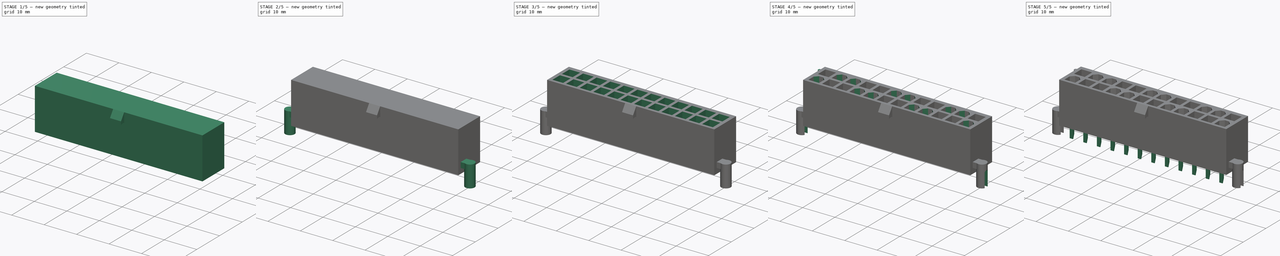
[diagram: build sequence overview — one tinted view per stage of 5, left to right]
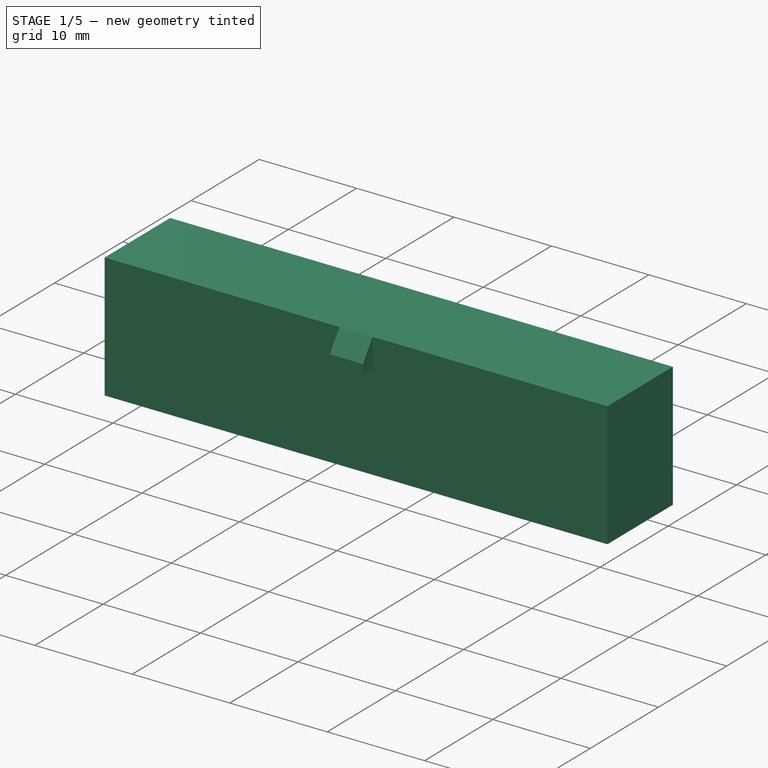
[diagram: stage 1 of 5 — iso view after this stage's code; geometry added in this stage tinted green]
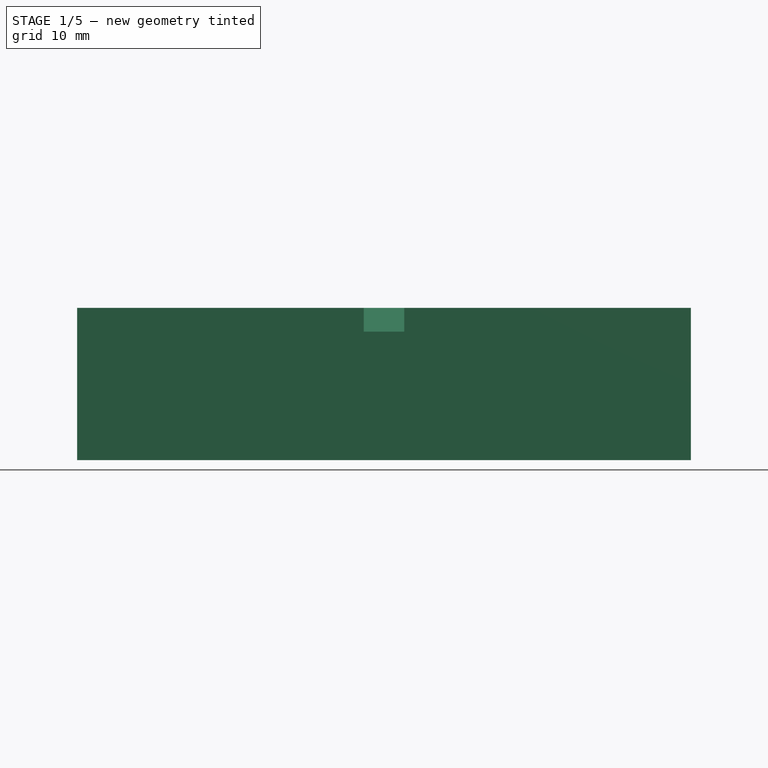
[diagram: stage 1 of 5 — front view after this stage's code; geometry added in this stage tinted green]
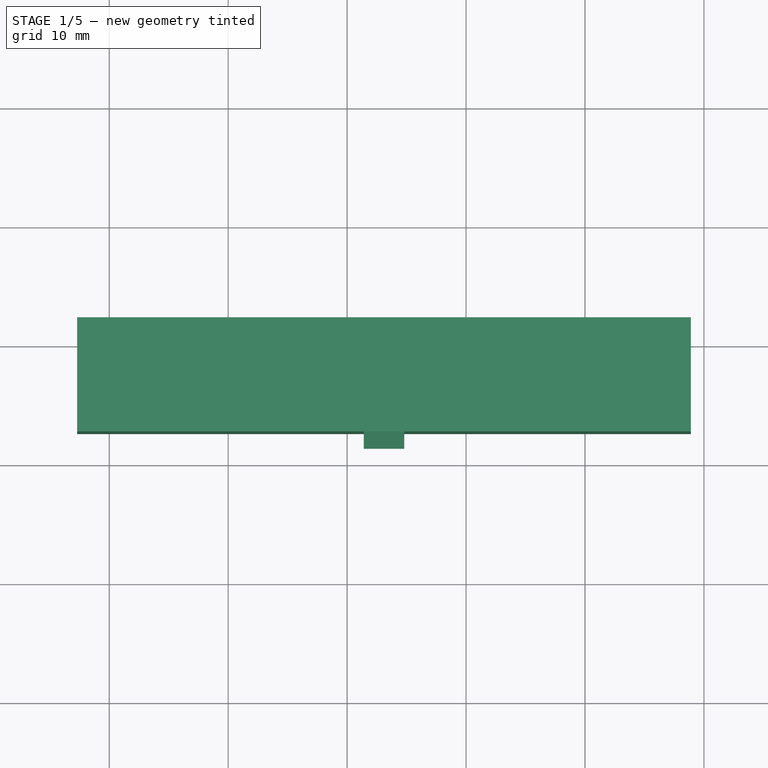
[diagram: stage 1 of 5 — top view after this stage's code; geometry added in this stage tinted green]
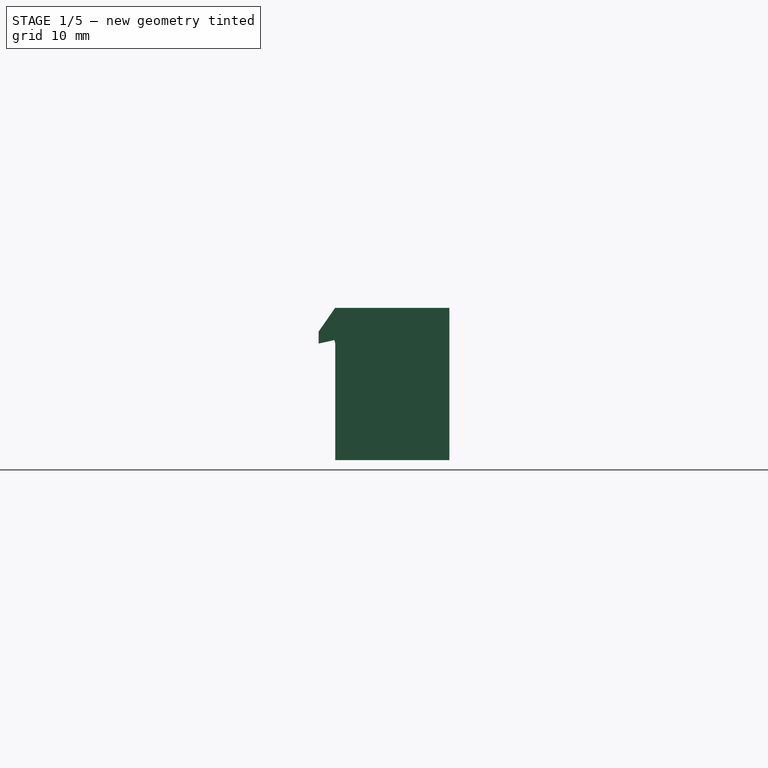
[diagram: stage 1 of 5 — right view after this stage's code; geometry added in this stage tinted green]
FCSTD DOCUMENT  (FreeCAD 0.20R29177 (Git))
Label: Molex_minifitJr_5566_24A2
License: All rights reserved
LicenseURL: http://en.wikipedia.org/wiki/All_rights_reserved
objects: PartDesign::AdditiveBox×4, PartDesign::SubtractiveBox×4, Sketcher::SketchObject×3, PartDesign::AdditiveCylinder×3, PartDesign::LinearPattern×3, PartDesign::Body×3, PartDesign::Chamfer×2, PartDesign::Fillet×2, App::Part×2, PartDesign::Pad×2, Part::FeaturePython×2, Part::Feature×1
note: 44 computed .brp shape members not serialized (recipe doc carries the construction recipe); baked Part::Feature solids carry a one-line shape summary decoded from their .brp

FEATURE [Sketcher::SketchObject] Sketch001  label="outline-sketch"
  FullyConstrained = false
  MapMode = 5
  Support = -> [XY_Plane]
  sketch-geometry (161):
    g0: LineSegment StartX=-2.75 StartY=-3.58868 StartZ=0 EndX=-4.7 EndY=-3.59 EndZ=0
    g1: ArcOfCircle CenterX=-4.7 CenterY=-5.04 CenterZ=0 NormalX=0 NormalY=0 NormalZ=1 AngleXU=1.5708 Radius=1.45 StartAngle=0 EndAngle=3.14159
    g2: LineSegment StartX=-2.7 StartY=-6.59 StartZ=0 EndX=-4.7 EndY=-6.59 EndZ=0
    g3: LineSegment StartX=-4.7 StartY=-6.49 StartZ=0 EndX=-2.7 EndY=-6.49 EndZ=0
    g4: ArcOfCircle CenterX=-4.7 CenterY=-5.04 CenterZ=0 NormalX=0 NormalY=0 NormalZ=1 AngleXU=1.5708 Radius=1.55 StartAngle=0 EndAngle=3.14159
    g5: ArcOfCircle CenterX=-4.7 CenterY=-3.54 CenterZ=0 NormalX=0 NormalY=0 NormalZ=1 AngleXU=1.5708 Radius=0.05 StartAngle=0 EndAngle=3.14159
    g6: LineSegment StartX=-4.7 StartY=-3.49 StartZ=0 EndX=-2.75 EndY=-3.48801 EndZ=0
    g7: LineSegment StartX=48.9 StartY=-3.49 StartZ=0 EndX=50.9 EndY=-3.49 EndZ=0
    g8: ArcOfCircle CenterX=50.9 CenterY=-5.04 CenterZ=0 NormalX=0 NormalY=0 NormalZ=1 AngleXU=-1.5708 Radius=1.45 StartAngle=0 EndAngle=3.14159
    g9: LineSegment StartX=50.9 StartY=-6.59 StartZ=0 EndX=48.9 EndY=-6.59 EndZ=0
    g10: LineSegment StartX=48.9 StartY=-6.49 StartZ=0 EndX=50.9 EndY=-6.49 EndZ=0
    g11: ArcOfCircle CenterX=50.9 CenterY=-5.04 CenterZ=0 NormalX=0 NormalY=0 NormalZ=1 AngleXU=-1.5708 Radius=1.55 StartAngle=0 EndAngle=3.14159
    g12: LineSegment StartX=50.9 StartY=-3.59 StartZ=0 EndX=48.9 EndY=-3.59 EndZ=0
    g13: LineSegment StartX=-2.75 StartY=-7.35 StartZ=0 EndX=-2.75 EndY=2.25 EndZ=0
    g14: ArcOfCircle CenterX=-2.7 CenterY=2.25 CenterZ=0 NormalX=0 NormalY=0 NormalZ=1 AngleXU=-1e-16 Radius=0.05 StartAngle=0 EndAngle=3.14159
    g15: ArcOfCircle CenterX=-2.7 CenterY=-7.35 CenterZ=0 NormalX=0 NormalY=0 NormalZ=1 AngleXU=-1e-16 Radius=0.05 StartAngle=3.14159 EndAngle=6.28319
    g16: LineSegment StartX=48.9 StartY=-7.4 StartZ=0 EndX=-2.7 EndY=-7.4 EndZ=0
    g17: ArcOfCircle CenterX=-2.7 CenterY=-7.35 CenterZ=0 NormalX=0 NormalY=0 NormalZ=1 AngleXU=1.5708 Radius=0.05 StartAngle=0 EndAngle=3.14159
    g18: ArcOfCircle CenterX=48.9 CenterY=-7.35 CenterZ=0 NormalX=0 NormalY=0 NormalZ=1 AngleXU=1.5708 Radius=0.05 StartAngle=3.14159 EndAngle=6.28319
    g19: LineSegment StartX=48.95 StartY=2.25 StartZ=0 EndX=48.95 EndY=-7.35 EndZ=0
    g20: ArcOfCircle CenterX=48.9 CenterY=-7.35 CenterZ=0 NormalX=0 NormalY=0 NormalZ=1 AngleXU=-3.14159 Radius=0.05 StartAngle=0 EndAngle=3.14159
    g21: LineSegment StartX=48.85 StartY=-7.35 StartZ=0 EndX=48.85 EndY=2.25 EndZ=0
    g22: ArcOfCircle CenterX=48.9 CenterY=2.25 CenterZ=0 NormalX=0 NormalY=0 NormalZ=1 AngleXU=-3.14159 Radius=0.05 StartAngle=3.14159 EndAngle=6.28319
    g23: LineSegment StartX=-2.7 StartY=2.3 StartZ=0 EndX=48.9 EndY=2.3 EndZ=0
    g24: ArcOfCircle CenterX=48.9 CenterY=2.25 CenterZ=0 NormalX=0 NormalY=0 NormalZ=1 AngleXU=-1.5708 Radius=0.05 StartAngle=0 EndAngle=3.14159
    g25: ArcOfCircle CenterX=-2.7 CenterY=2.25 CenterZ=0 NormalX=0 NormalY=0 NormalZ=1 AngleXU=-1.5708 Radius=0.05 StartAngle=3.14159 EndAngle=6.28319
    g26: LineSegment StartX=21.35 StartY=-8.75 StartZ=0 EndX=21.35 EndY=-7.35 EndZ=0
    g27: ArcOfCircle CenterX=21.4 CenterY=-8.75 CenterZ=0 NormalX=0 NormalY=0 NormalZ=1 AngleXU=-1e-16 Radius=0.05 StartAngle=3.14159 EndAngle=6.28319
    g28: LineSegment StartX=24.8 StartY=-8.8 StartZ=0 EndX=21.4 EndY=-8.8 EndZ=0
    g29: ArcOfCircle CenterX=21.4 CenterY=-8.75 CenterZ=0 NormalX=0 NormalY=0 NormalZ=1 AngleXU=1.5708 Radius=0.05 StartAngle=0 EndAngle=3.14159
    g30: ArcOfCircle CenterX=24.8 CenterY=-8.75 CenterZ=0 NormalX=0 NormalY=0 NormalZ=1 AngleXU=1.5708 Radius=0.05 StartAngle=3.14159 EndAngle=6.28319
    g31: LineSegment StartX=24.85 StartY=-7.35 StartZ=0 EndX=24.85 EndY=-8.75 EndZ=0
    g32: ArcOfCircle CenterX=24.8 CenterY=-8.75 CenterZ=0 NormalX=0 NormalY=0 NormalZ=1 AngleXU=-3.14159 Radius=0.05 StartAngle=0 EndAngle=3.14159
    g33: LineSegment StartX=-1.6 StartY=1 StartZ=0 EndX=-1.6 EndY=-2.3 EndZ=0
    g34: LineSegment StartX=-1.65 StartY=-2.25 StartZ=0 EndX=1.65 EndY=-2.25 EndZ=0
    g35: LineSegment StartX=1.6 StartY=-2.3 StartZ=0 EndX=1.6 EndY=1 EndZ=0
    g36: LineSegment StartX=1.65 StartY=0.95 StartZ=0 EndX=-1.65 EndY=0.95 EndZ=0
    g37: LineSegment StartX=-1.6 StartY=-4.025 StartZ=0 EndX=-1.6 EndY=-6.5 EndZ=0
    g38: LineSegment StartX=-0.789645 StartY=-3.23536 StartZ=0 EndX=-1.61464 EndY=-4.06036 EndZ=0
    g39: LineSegment StartX=0.825 StartY=-3.25 StartZ=0 EndX=-0.825 EndY=-3.25 EndZ=0
    g40: LineSegment StartX=1.61464 StartY=-4.06036 StartZ=0 EndX=0.789645 EndY=-3.23536 EndZ=0
    g41: LineSegment StartX=1.6 StartY=-6.5 StartZ=0 EndX=1.6 EndY=-4.025 EndZ=0
    g42: LineSegment StartX=-1.65 StartY=-6.45 StartZ=0 EndX=1.65 EndY=-6.45 EndZ=0
    g43: LineSegment StartX=2.6 StartY=-3.2 StartZ=0 EndX=2.6 EndY=-6.5 EndZ=0
    g44: LineSegment StartX=2.55 StartY=-6.45 StartZ=0 EndX=5.85 EndY=-6.45 EndZ=0
    g45: LineSegment StartX=5.8 StartY=-6.5 StartZ=0 EndX=5.8 EndY=-3.2 EndZ=0
    g46: LineSegment StartX=5.85 StartY=-3.25 StartZ=0 EndX=2.55 EndY=-3.25 EndZ=0
    g47: LineSegment StartX=2.6 StartY=0.175 StartZ=0 EndX=2.6 EndY=-2.3 EndZ=0
    g48: LineSegment StartX=3.41036 StartY=0.964645 StartZ=0 EndX=2.58536 EndY=0.139645 EndZ=0
    g49: LineSegment StartX=5.025 StartY=0.95 StartZ=0 EndX=3.375 EndY=0.95 EndZ=0
    g50: LineSegment StartX=5.81464 StartY=0.139645 StartZ=0 EndX=4.98964 EndY=0.964645 EndZ=0
    g51: LineSegment StartX=5.8 StartY=-2.3 StartZ=0 EndX=5.8 EndY=0.175 EndZ=0
    g52: LineSegment StartX=2.55 StartY=-2.25 StartZ=0 EndX=5.85 EndY=-2.25 EndZ=0
    g53: LineSegment StartX=6.8 StartY=-3.2 StartZ=0 EndX=6.8 EndY=-6.5 EndZ=0
    g54: LineSegment StartX=6.75 StartY=-6.45 StartZ=0 EndX=10.05 EndY=-6.45 EndZ=0
    g55: LineSegment StartX=10 StartY=-6.5 StartZ=0 EndX=10 EndY=-3.2 EndZ=0
    g56: LineSegment StartX=10.05 StartY=-3.25 StartZ=0 EndX=6.75 EndY=-3.25 EndZ=0
    g57: LineSegment StartX=6.8 StartY=0.175 StartZ=0 EndX=6.8 EndY=-2.3 EndZ=0
    g58: LineSegment StartX=7.61036 StartY=0.964645 StartZ=0 EndX=6.78536 EndY=0.139645 EndZ=0
    g59: LineSegment StartX=9.225 StartY=0.95 StartZ=0 EndX=7.575 EndY=0.95 EndZ=0
    g60: LineSegment StartX=10.0146 StartY=0.139645 StartZ=0 EndX=9.18964 EndY=0.964645 EndZ=0
    g61: LineSegment StartX=10 StartY=-2.3 StartZ=0 EndX=10 EndY=0.175 EndZ=0
    g62: LineSegment StartX=6.75 StartY=-2.25 StartZ=0 EndX=10.05 EndY=-2.25 EndZ=0
    g63: LineSegment StartX=11 StartY=1 StartZ=0 EndX=11 EndY=-2.3 EndZ=0
    g64: LineSegment StartX=10.95 StartY=-2.25 StartZ=0 EndX=14.25 EndY=-2.25 EndZ=0
    g65: LineSegment StartX=14.2 StartY=-2.3 StartZ=0 EndX=14.2 EndY=1 EndZ=0
    g66: LineSegment StartX=14.25 StartY=0.95 StartZ=0 EndX=10.95 EndY=0.95 EndZ=0
    g67: LineSegment StartX=11 StartY=-4.025 StartZ=0 EndX=11 EndY=-6.5 EndZ=0
    g68: ArcOfCircle CenterX=10.95 CenterY=-4.025 CenterZ=0 NormalX=0 NormalY=0 NormalZ=1 AngleXU=-3.14159 Radius=0.05 StartAngle=3.14159 EndAngle=6.28319
    g69: LineSegment StartX=11.8104 StartY=-3.23536 StartZ=0 EndX=10.9854 EndY=-4.06036 EndZ=0
    g70: ArcOfCircle CenterX=10.95 CenterY=-4.025 CenterZ=0 NormalX=0 NormalY=0 NormalZ=1 AngleXU=2.35619 Radius=0.05 StartAngle=0 EndAngle=3.14159
    g71: LineSegment StartX=13.425 StartY=-3.25 StartZ=0 EndX=11.775 EndY=-3.25 EndZ=0
    g72: LineSegment StartX=14.2146 StartY=-4.06036 StartZ=0 EndX=13.3896 EndY=-3.23536 EndZ=0
    g73: ArcOfCircle CenterX=14.25 CenterY=-4.025 CenterZ=0 NormalX=0 NormalY=0 NormalZ=1 AngleXU=0.785398 Radius=0.05 StartAngle=3.14159 EndAngle=6.28319
    g74: LineSegment StartX=14.2 StartY=-6.5 StartZ=0 EndX=14.2 EndY=-4.025 EndZ=0
    g75: ArcOfCircle CenterX=14.25 CenterY=-4.025 CenterZ=0 NormalX=0 NormalY=0 NormalZ=1 AngleXU=-1e-16 Radius=0.05 StartAngle=0 EndAngle=3.14159
    g76: LineSegment StartX=10.95 StartY=-6.45 StartZ=0 EndX=14.25 EndY=-6.45 EndZ=0
    g77: LineSegment StartX=15.2 StartY=1 StartZ=0 EndX=15.2 EndY=-2.3 EndZ=0
    g78: LineSegment StartX=15.15 StartY=-2.25 StartZ=0 EndX=18.45 EndY=-2.25 EndZ=0
    g79: LineSegment StartX=18.4 StartY=-2.3 StartZ=0 EndX=18.4 EndY=1 EndZ=0
    g80: LineSegment StartX=18.45 StartY=0.95 StartZ=0 EndX=15.15 EndY=0.95 EndZ=0
    g81: LineSegment StartX=15.2 StartY=-4.025 StartZ=0 EndX=15.2 EndY=-6.5 EndZ=0
    g82: ArcOfCircle CenterX=15.15 CenterY=-4.025 CenterZ=0 NormalX=0 NormalY=0 NormalZ=1 AngleXU=-3.14159 Radius=0.05 StartAngle=3.14159 EndAngle=6.28319
    g83: LineSegment StartX=16.0104 StartY=-3.23536 StartZ=0 EndX=15.1854 EndY=-4.06036 EndZ=0
    g84: ArcOfCircle CenterX=15.15 CenterY=-4.025 CenterZ=0 NormalX=0 NormalY=0 NormalZ=1 AngleXU=2.35619 Radius=0.05 StartAngle=0 EndAngle=3.14159
    g85: LineSegment StartX=17.625 StartY=-3.25 StartZ=0 EndX=15.975 EndY=-3.25 EndZ=0
    g86: LineSegment StartX=18.4146 StartY=-4.06036 StartZ=0 EndX=17.5896 EndY=-3.23536 EndZ=0
    g87: ArcOfCircle CenterX=18.45 CenterY=-4.025 CenterZ=0 NormalX=0 NormalY=0 NormalZ=1 AngleXU=0.785398 Radius=0.05 StartAngle=3.14159 EndAngle=6.28319
    g88: LineSegment StartX=18.4 StartY=-6.5 StartZ=0 EndX=18.4 EndY=-4.025 EndZ=0
    g89: ArcOfCircle CenterX=18.45 CenterY=-4.025 CenterZ=0 NormalX=0 NormalY=0 NormalZ=1 AngleXU=-1e-16 Radius=0.05 StartAngle=0 EndAngle=3.14159
    g90: LineSegment StartX=15.15 StartY=-6.45 StartZ=0 EndX=18.45 EndY=-6.45 EndZ=0
    g91: LineSegment StartX=19.4 StartY=-3.2 StartZ=0 EndX=19.4 EndY=-6.5 EndZ=0
    g92: LineSegment StartX=19.35 StartY=-6.45 StartZ=0 EndX=22.65 EndY=-6.45 EndZ=0
    g93: LineSegment StartX=22.6 StartY=-6.5 StartZ=0 EndX=22.6 EndY=-3.2 EndZ=0
    g94: LineSegment StartX=22.65 StartY=-3.25 StartZ=0 EndX=19.35 EndY=-3.25 EndZ=0
    g95: LineSegment StartX=19.4 StartY=0.175 StartZ=0 EndX=19.4 EndY=-2.3 EndZ=0
    g96: LineSegment StartX=20.2104 StartY=0.964645 StartZ=0 EndX=19.3854 EndY=0.139645 EndZ=0
    g97: LineSegment StartX=21.825 StartY=0.95 StartZ=0 EndX=20.175 EndY=0.95 EndZ=0
    g98: LineSegment StartX=22.6146 StartY=0.139645 StartZ=0 EndX=21.7896 EndY=0.964645 EndZ=0
    g99: LineSegment StartX=22.6 StartY=-2.3 StartZ=0 EndX=22.6 EndY=0.175 EndZ=0
    g100: LineSegment StartX=19.35 StartY=-2.25 StartZ=0 EndX=22.65 EndY=-2.25 EndZ=0
    g101: LineSegment StartX=23.6 StartY=-3.2 StartZ=0 EndX=23.6 EndY=-6.5 EndZ=0
    g102: LineSegment StartX=23.55 StartY=-6.45 StartZ=0 EndX=26.85 EndY=-6.45 EndZ=0
    g103: LineSegment StartX=26.8 StartY=-6.5 StartZ=0 EndX=26.8 EndY=-3.2 EndZ=0
    g104: LineSegment StartX=26.85 StartY=-3.25 StartZ=0 EndX=23.55 EndY=-3.25 EndZ=0
    g105: LineSegment StartX=23.6 StartY=0.175 StartZ=0 EndX=23.6 EndY=-2.3 EndZ=0
    g106: LineSegment StartX=24.4104 StartY=0.964645 StartZ=0 EndX=23.5854 EndY=0.139645 EndZ=0
    g107: LineSegment StartX=26.025 StartY=0.95 StartZ=0 EndX=24.375 EndY=0.95 EndZ=0
    g108: LineSegment StartX=26.8146 StartY=0.139645 StartZ=0 EndX=25.9896 EndY=0.964645 EndZ=0
    g109: LineSegment StartX=26.8 StartY=-2.3 StartZ=0 EndX=26.8 EndY=0.175 EndZ=0
    g110: LineSegment StartX=23.55 StartY=-2.25 StartZ=0 EndX=26.85 EndY=-2.25 EndZ=0
    g111: LineSegment StartX=27.8 StartY=1 StartZ=0 EndX=27.8 EndY=-2.3 EndZ=0
    g112: LineSegment StartX=27.75 StartY=-2.25 StartZ=0 EndX=31.05 EndY=-2.25 EndZ=0
    g113: LineSegment StartX=31 StartY=-2.3 StartZ=0 EndX=31 EndY=1 EndZ=0
    g114: LineSegment StartX=31.05 StartY=0.95 StartZ=0 EndX=27.75 EndY=0.95 EndZ=0
    g115: LineSegment StartX=27.8 StartY=-4.025 StartZ=0 EndX=27.8 EndY=-6.5 EndZ=0
    g116: LineSegment StartX=28.6104 StartY=-3.23536 StartZ=0 EndX=27.7854 EndY=-4.06036 EndZ=0
    g117: LineSegment StartX=30.225 StartY=-3.25 StartZ=0 EndX=28.575 EndY=-3.25 EndZ=0
    g118: LineSegment StartX=31.0146 StartY=-4.06036 StartZ=0 EndX=30.1896 EndY=-3.23536 EndZ=0
    g119: LineSegment StartX=31 StartY=-6.5 StartZ=0 EndX=31 EndY=-4.025 EndZ=0
    g120: LineSegment StartX=27.75 StartY=-6.45 StartZ=0 EndX=31.05 EndY=-6.45 EndZ=0
    g121: LineSegment StartX=32 StartY=1 StartZ=0 EndX=32 EndY=-2.3 EndZ=0
    g122: LineSegment StartX=31.95 StartY=-2.25 StartZ=0 EndX=35.25 EndY=-2.25 EndZ=0
    g123: LineSegment StartX=35.2 StartY=-2.3 StartZ=0 EndX=35.2 EndY=1 EndZ=0
    g124: LineSegment StartX=35.25 StartY=0.95 StartZ=0 EndX=31.95 EndY=0.95 EndZ=0
    g125: LineSegment StartX=32 StartY=-4.025 StartZ=0 EndX=32 EndY=-6.5 EndZ=0
    g126: LineSegment StartX=32.8104 StartY=-3.23536 StartZ=0 EndX=31.9854 EndY=-4.06036 EndZ=0
    g127: LineSegment StartX=34.425 StartY=-3.25 StartZ=0 EndX=32.775 EndY=-3.25 EndZ=0
    g128: LineSegment StartX=35.2146 StartY=-4.06036 StartZ=0 EndX=34.3896 EndY=-3.23536 EndZ=0
    g129: LineSegment StartX=35.2 StartY=-6.5 StartZ=0 EndX=35.2 EndY=-4.025 EndZ=0
    g130: LineSegment StartX=31.95 StartY=-6.45 StartZ=0 EndX=35.25 EndY=-6.45 EndZ=0
    g131: LineSegment StartX=36.2 StartY=-3.2 StartZ=0 EndX=36.2 EndY=-6.5 EndZ=0
    g132: LineSegment StartX=36.15 StartY=-6.45 StartZ=0 EndX=39.45 EndY=-6.45 EndZ=0
    g133: LineSegment StartX=39.4 StartY=-6.5 StartZ=0 EndX=39.4 EndY=-3.2 EndZ=0
    g134: LineSegment StartX=39.45 StartY=-3.25 StartZ=0 EndX=36.15 EndY=-3.25 EndZ=0
    g135: LineSegment StartX=36.2 StartY=0.175 StartZ=0 EndX=36.2 EndY=-2.3 EndZ=0
    g136: LineSegment StartX=37.0104 StartY=0.964645 StartZ=0 EndX=36.1854 EndY=0.139645 EndZ=0
    g137: LineSegment StartX=38.625 StartY=0.95 StartZ=0 EndX=36.975 EndY=0.95 EndZ=0
    g138: LineSegment StartX=39.4146 StartY=0.139645 StartZ=0 EndX=38.5896 EndY=0.964645 EndZ=0
    g139: LineSegment StartX=39.4 StartY=-2.3 StartZ=0 EndX=39.4 EndY=0.175 EndZ=0
    g140: LineSegment StartX=36.15 StartY=-2.25 StartZ=0 EndX=39.45 EndY=-2.25 EndZ=0
    g141: LineSegment StartX=40.4 StartY=-3.2 StartZ=0 EndX=40.4 EndY=-6.5 EndZ=0
    g142: LineSegment StartX=40.35 StartY=-6.45 StartZ=0 EndX=43.65 EndY=-6.45 EndZ=0
    g143: LineSegment StartX=43.6 StartY=-6.5 StartZ=0 EndX=43.6 EndY=-3.2 EndZ=0
    g144: LineSegment StartX=43.65 StartY=-3.25 StartZ=0 EndX=40.35 EndY=-3.25 EndZ=0
    g145: LineSegment StartX=40.4 StartY=0.175 StartZ=0 EndX=40.4 EndY=-2.3 EndZ=0
    g146: LineSegment StartX=41.2104 StartY=0.964645 StartZ=0 EndX=40.3854 EndY=0.139645 EndZ=0
    g147: LineSegment StartX=42.825 StartY=0.95 StartZ=0 EndX=41.175 EndY=0.95 EndZ=0
    g148: LineSegment StartX=43.6146 StartY=0.139645 StartZ=0 EndX=42.7896 EndY=0.964645 EndZ=0
    g149: LineSegment StartX=43.6 StartY=-2.3 StartZ=0 EndX=43.6 EndY=0.175 EndZ=0
    g150: LineSegment StartX=40.35 StartY=-2.25 StartZ=0 EndX=43.65 EndY=-2.25 EndZ=0
    g151: LineSegment StartX=44.6 StartY=1 StartZ=0 EndX=44.6 EndY=-2.3 EndZ=0
    g152: LineSegment StartX=44.55 StartY=-2.25 StartZ=0 EndX=47.85 EndY=-2.25 EndZ=0
    g153: LineSegment StartX=47.8 StartY=-2.3 StartZ=0 EndX=47.8 EndY=1 EndZ=0
    g154: LineSegment StartX=47.85 StartY=0.95 StartZ=0 EndX=44.55 EndY=0.95 EndZ=0
    g155: LineSegment StartX=44.6 StartY=-4.025 StartZ=0 EndX=44.6 EndY=-6.5 EndZ=0
    g156: LineSegment StartX=45.4104 StartY=-3.23536 StartZ=0 EndX=44.5854 EndY=-4.06036 EndZ=0
    g157: LineSegment StartX=47.025 StartY=-3.25 StartZ=0 EndX=45.375 EndY=-3.25 EndZ=0
    g158: LineSegment StartX=47.8146 StartY=-4.06036 StartZ=0 EndX=46.9896 EndY=-3.23536 EndZ=0
    g159: LineSegment StartX=47.8 StartY=-6.5 StartZ=0 EndX=47.8 EndY=-4.025 EndZ=0
    g160: LineSegment StartX=44.55 StartY=-6.45 StartZ=0 EndX=47.85 EndY=-6.45 EndZ=0
FEATURE [PartDesign::AdditiveBox] Box  label="base"
  AttacherType = Attacher::AttachEngine3D
  AttachmentOffset = pos=(-2.7,-7.35,0) rot=(0,0,1;0rad)
  Height = 12.8
  Length = 51.6
  MapMode = 5
  Placement = pos=(-2.7,-7.35,0) rot=(0,0,1;0rad)
  Support = -> [XY_Plane]
  Width = 9.6
FEATURE [PartDesign::AdditiveBox] Box001  label="nob-base"
  AttacherType = Attacher::AttachEngine3D
  AttachmentOffset = pos=(21.4,-8.75,9.8) rot=(0,0,1;0rad)
  BaseFeature = -> Box
  Height = 3
  Length = 3.4
  MapMode = 5
  Placement = pos=(21.4,-8.75,9.8) rot=(0,0,1;0rad)
  Support = -> [XY_Plane]
  Width = 1.4
FEATURE [PartDesign::Chamfer] Chamfer  label="nob-cut-top"
  Angle = 45
  Base = -> Box001 [Edge25]
  BaseFeature = -> Box001
  ChamferType = 1
  FlipDirection = false
  Placement = pos=(21.4,-8.75,9.8) rot=(0,0,1;0rad)
  Size = 1.39
  Size2 = 2
  SupportTransform = false
  UseAllEdges = false
FEATURE [PartDesign::SubtractiveBox] Box002  label="nob-cut-bot"
  AttacherType = Attacher::AttachEngine3D
  AttachmentOffset = pos=(21.4,-8.815,9.475) rot=(1,0,0;0.218166rad)
  BaseFeature = -> Chamfer
  Height = 0.3
  Length = 3.4
  MapMode = 5
  Placement = pos=(21.4,-8.815,9.475) rot=(1,0,0;0.218166rad)
  Support = -> [XY_Plane]
  Width = 1.5
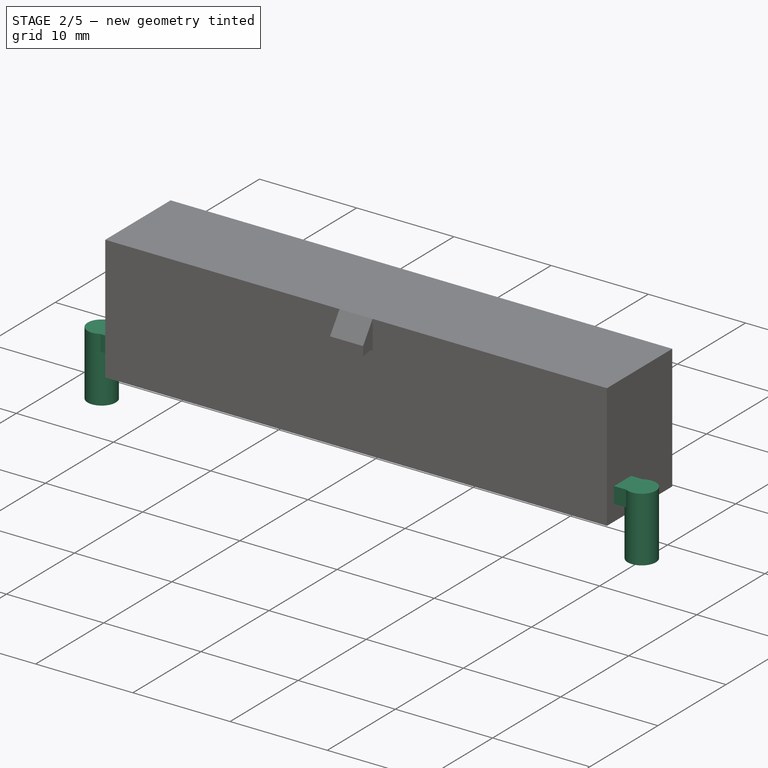
[diagram: stage 2 of 5 — iso view after this stage's code; geometry added in this stage tinted green]
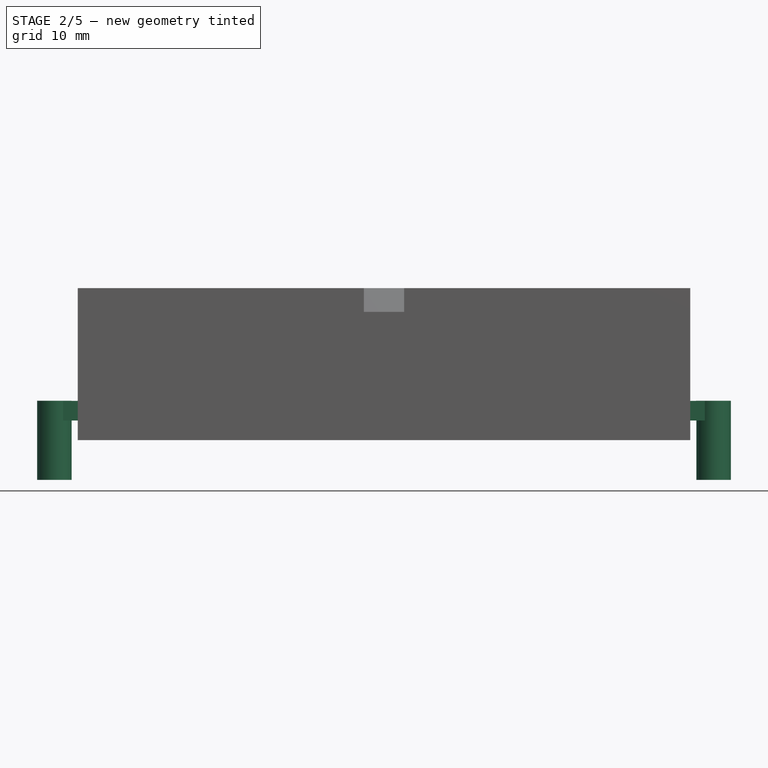
[diagram: stage 2 of 5 — front view after this stage's code; geometry added in this stage tinted green]
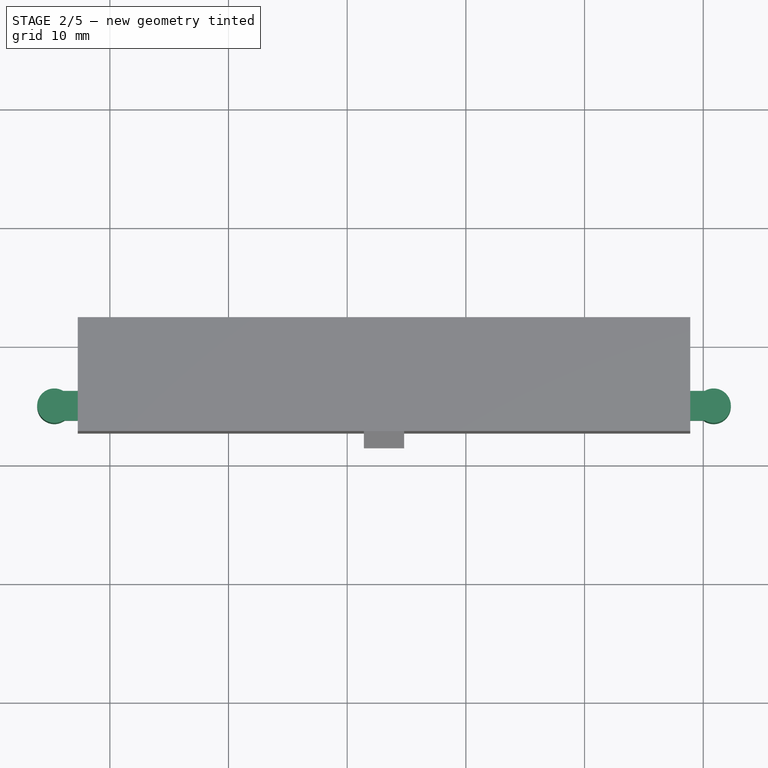
[diagram: stage 2 of 5 — top view after this stage's code; geometry added in this stage tinted green]
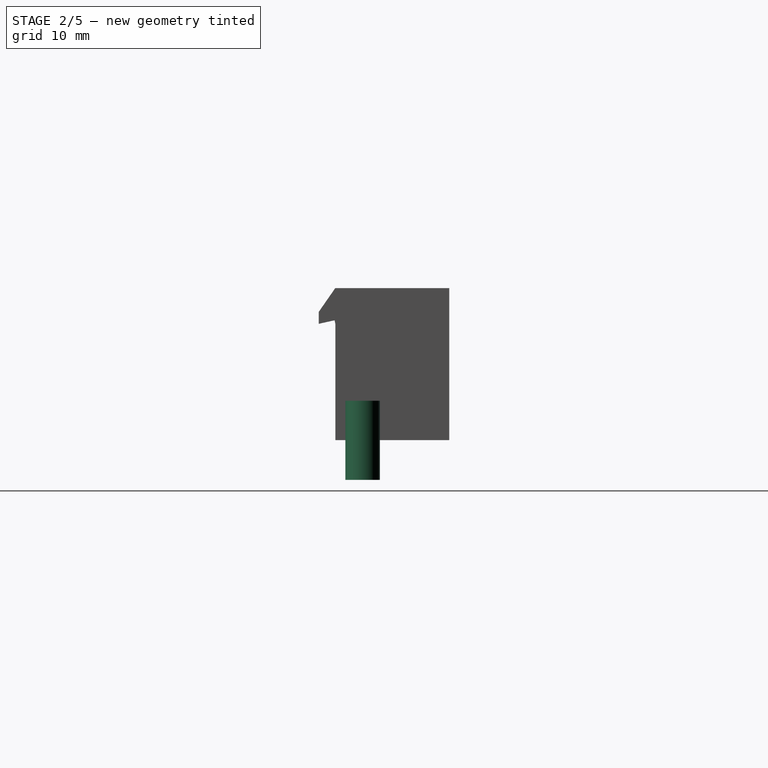
[diagram: stage 2 of 5 — right view after this stage's code; geometry added in this stage tinted green]
FEATURE [PartDesign::Fillet] Fillet  label="nob-cut-bot-smooth"
  Base = -> Box002 [Edge23]
  BaseFeature = -> Box002
  Placement = pos=(21.4,-8.815,9.475) rot=(1,0,0;0.218166rad)
  Radius = 0.05
  SupportTransform = false
  UseAllEdges = false
FEATURE [PartDesign::AdditiveBox] Box006  label="prong_arm-left"
  AttacherType = Attacher::AttachEngine3D
  AttachmentOffset = pos=(-4.2,-6.3,1.65) rot=(0,0,1;0rad)
  BaseFeature = -> Fillet
  Height = 1.65
  Length = 1.5
  MapMode = 5
  Placement = pos=(-4.2,-6.3,1.65) rot=(0,0,1;0rad)
  Support = -> [XY_Plane]
  Width = 2.5
FEATURE [PartDesign::AdditiveCylinder] Cylinder  label="prong_pcb-left"
  Angle = 360
  AttacherType = Attacher::AttachEngine3D
  AttachmentOffset = pos=(-4.675,-5.05,-3.35) rot=(0,0,1;0rad)
  BaseFeature = -> Box006
  FirstAngle = 0
  Height = 6.66
  MapMode = 5
  Placement = pos=(-4.675,-5.05,-3.35) rot=(0,0,1;0rad)
  Radius = 1.45
  SecondAngle = 0
  Support = -> [XY_Plane]
FEATURE [PartDesign::AdditiveBox] Box007  label="prong_arm-right"
  AttacherType = Attacher::AttachEngine3D
  AttachmentOffset = pos=(48.9,-6.3,1.65) rot=(0,0,1;0rad)
  BaseFeature = -> Cylinder
  Height = 1.65
  Length = 1.5
  MapMode = 5
  Placement = pos=(48.9,-6.3,1.65) rot=(0,0,1;0rad)
  Support = -> [XY_Plane]
  Width = 2.5
FEATURE [PartDesign::AdditiveCylinder] Cylinder001  label="prong-pcb-right"
  Angle = 360
  AttacherType = Attacher::AttachEngine3D
  AttachmentOffset = pos=(50.875,-5.05,-3.35) rot=(0,0,1;0rad)
  BaseFeature = -> Box007
  FirstAngle = 0
  Height = 6.66
  MapMode = 5
  Placement = pos=(50.875,-5.05,-3.35) rot=(0,0,1;0rad)
  Radius = 1.45
  SecondAngle = 0
  Support = -> [XY_Plane]
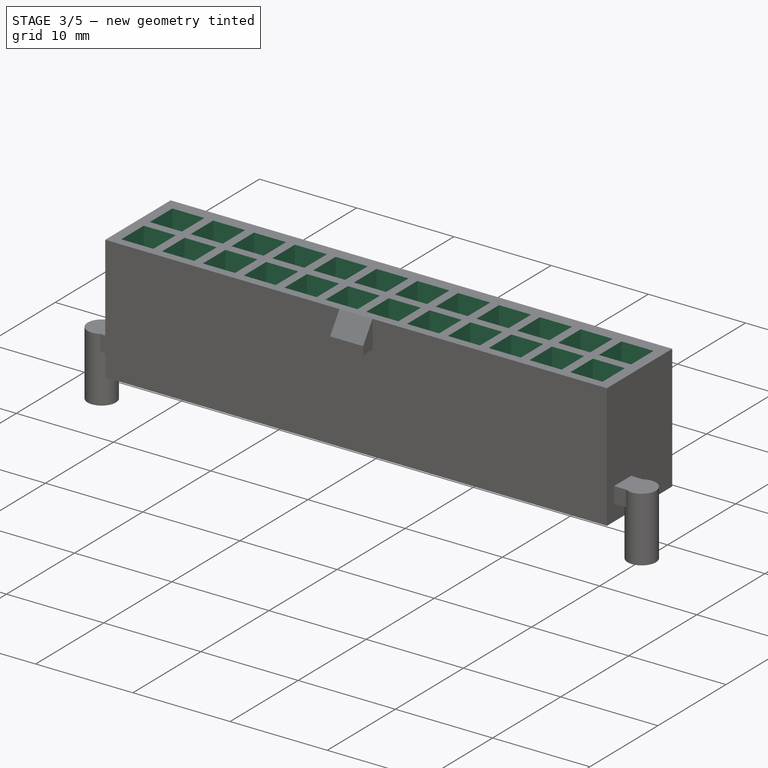
[diagram: stage 3 of 5 — iso view after this stage's code; geometry added in this stage tinted green]
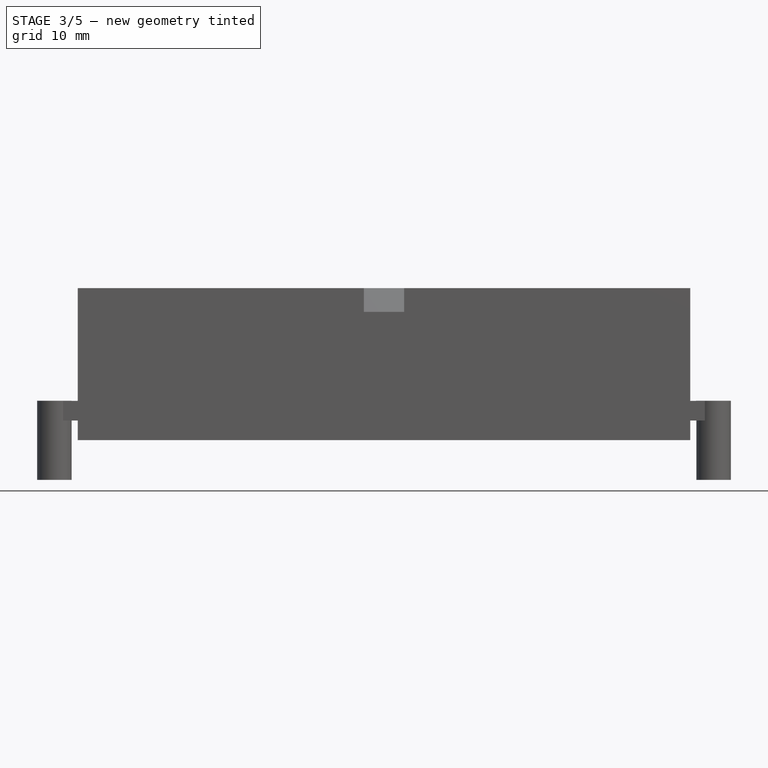
[diagram: stage 3 of 5 — front view after this stage's code; geometry added in this stage tinted green]
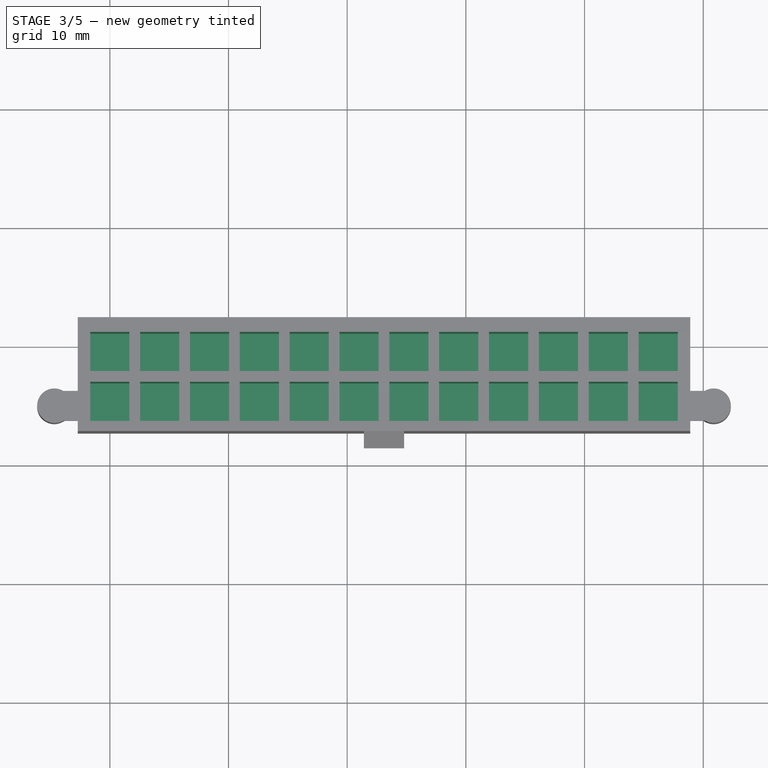
[diagram: stage 3 of 5 — top view after this stage's code; geometry added in this stage tinted green]
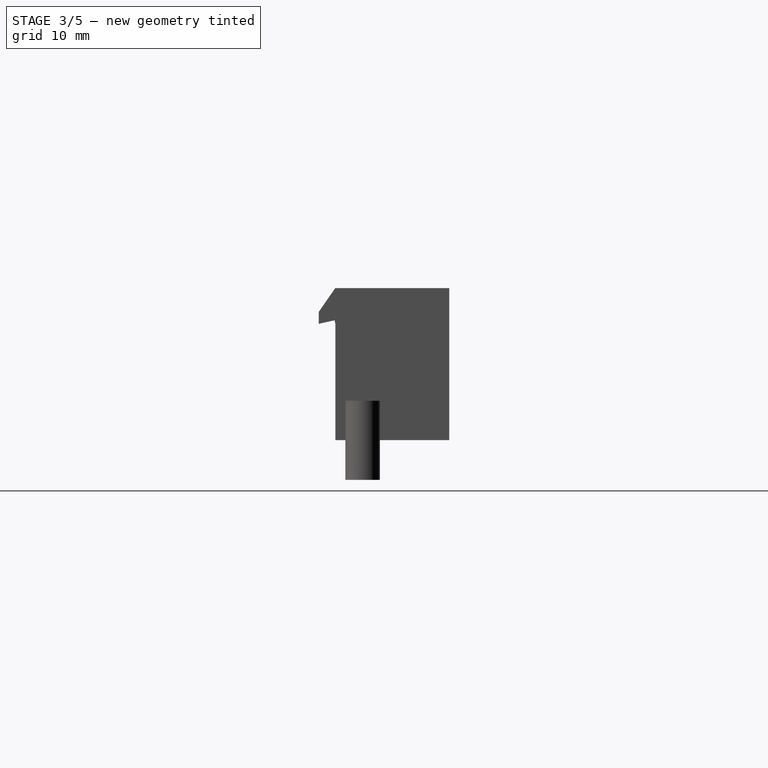
[diagram: stage 3 of 5 — right view after this stage's code; geometry added in this stage tinted green]
FEATURE [PartDesign::SubtractiveBox] Box003  label="pin-hole-top"
  AttacherType = Attacher::AttachEngine3D
  AttachmentOffset = pos=(-1.65,-2.3,4.1) rot=(0,0,1;0rad)
  BaseFeature = -> Cylinder001
  Height = 8.75
  Length = 3.3
  MapMode = 5
  Placement = pos=(-1.65,-2.3,4.1) rot=(0,0,1;0rad)
  Support = -> [XY_Plane]
  Width = 3.3
FEATURE [PartDesign::LinearPattern] LinearPattern  label="pin-holes-top"
  BaseFeature = -> Box003
  Direction = -> X_Axis
  Length = 46.2
  Occurrences = 12
  Originals = -> [Box003]
  Placement = pos=(-1.65,-2.3,4.1) rot=(0,0,1;0rad)
FEATURE [PartDesign::SubtractiveBox] Box008  label="pin-hole-bot"
  AttacherType = Attacher::AttachEngine3D
  AttachmentOffset = pos=(-1.65,-6.5,4.1) rot=(0,0,1;0rad)
  BaseFeature = -> LinearPattern
  Height = 8.75
  Length = 3.3
  MapMode = 5
  Placement = pos=(-1.65,-6.5,4.1) rot=(0,0,1;0rad)
  Support = -> [XY_Plane]
  Width = 3.3
FEATURE [PartDesign::LinearPattern] LinearPattern001  label="pin-holes-bot"
  BaseFeature = -> Box008
  Direction = -> X_Axis
  Length = 46.2
  Occurrences = 12
  Originals = -> [Box008]
  Placement = pos=(-1.65,-6.5,4.1) rot=(0,0,1;0rad)
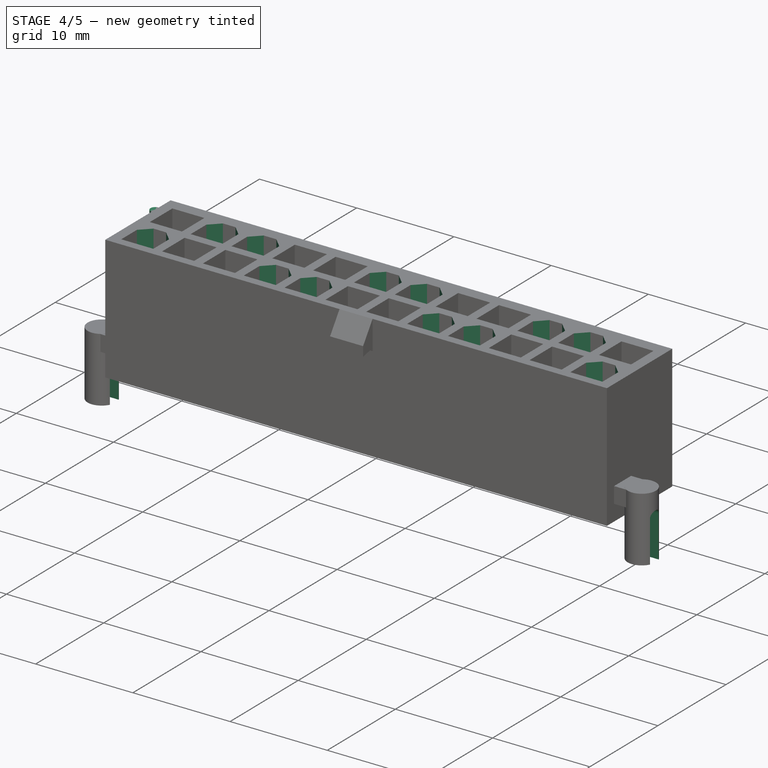
[diagram: stage 4 of 5 — iso view after this stage's code; geometry added in this stage tinted green]
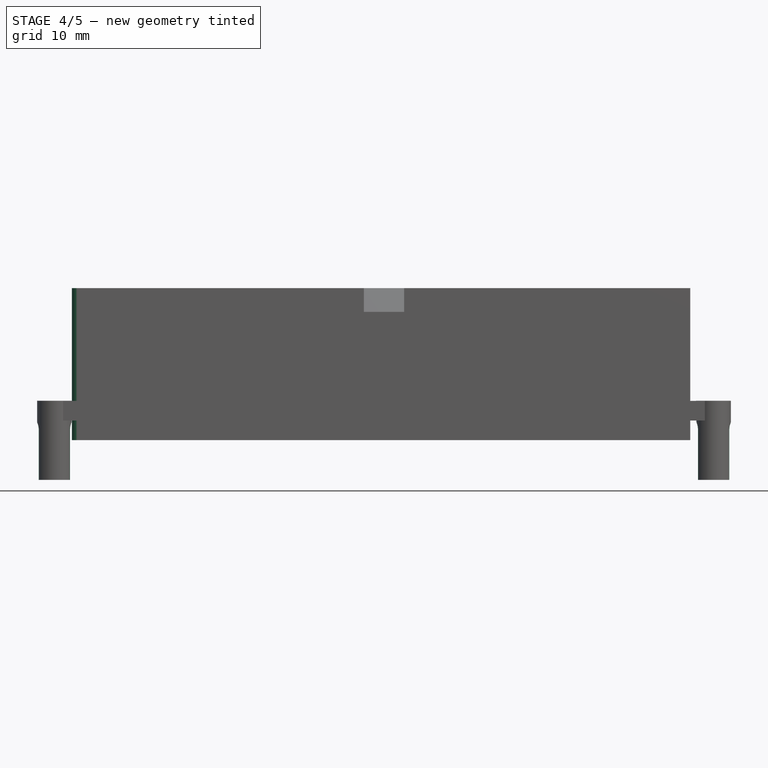
[diagram: stage 4 of 5 — front view after this stage's code; geometry added in this stage tinted green]
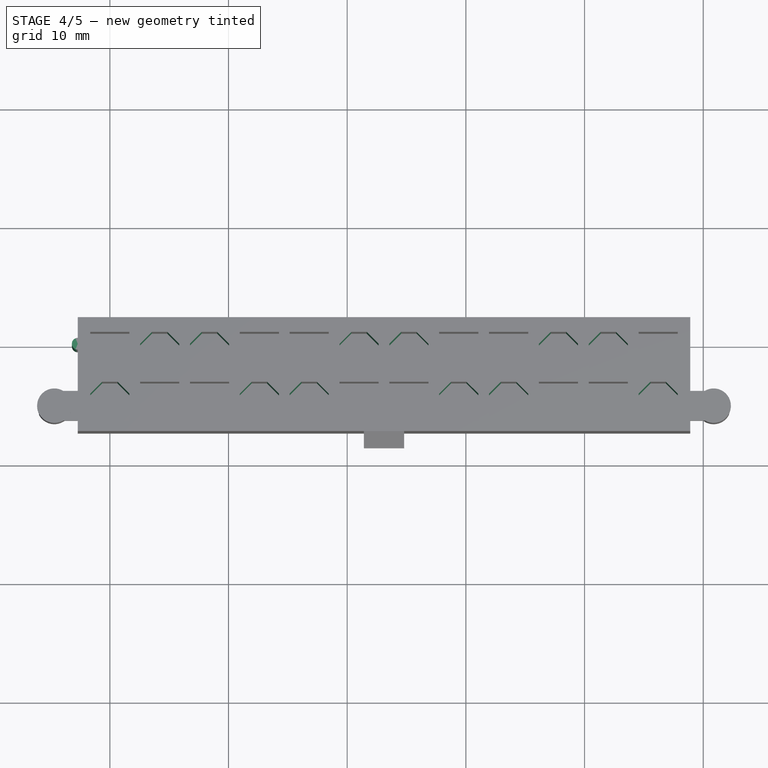
[diagram: stage 4 of 5 — top view after this stage's code; geometry added in this stage tinted green]
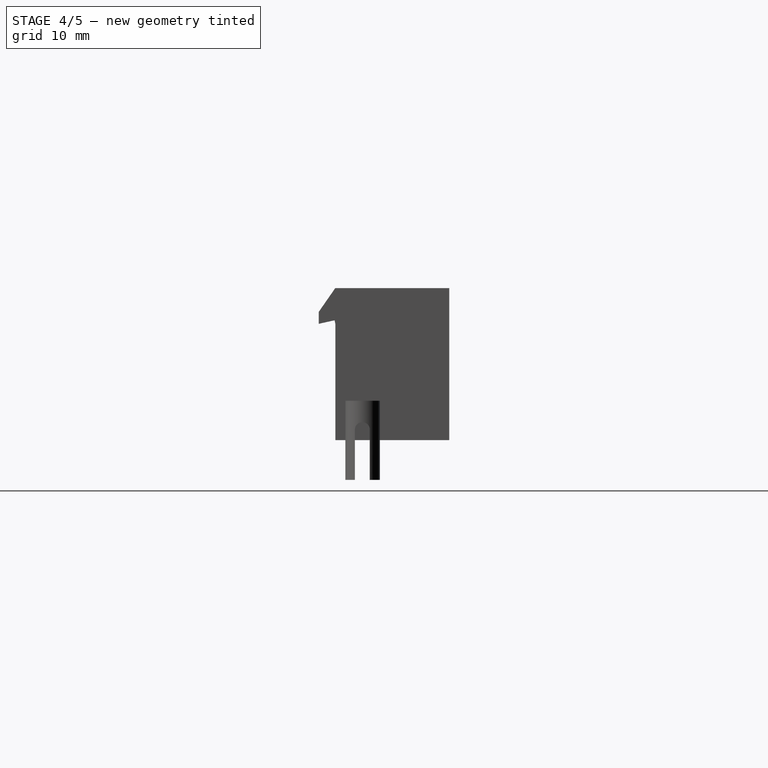
[diagram: stage 4 of 5 — right view after this stage's code; geometry added in this stage tinted green]
FEATURE [PartDesign::Chamfer] Chamfer001  label="pin-holes-chamfer"
  Angle = 45
  Base = -> LinearPattern001 [Edge262,Edge158,Edge260,Edge156,Edge180,Edge182,Edge222,Edge334,Edge326,Edge244,Edge332,Edge246,Edge188,Edge190,Edge270,Edge268,Edge324,Edge220,Edge212,Edge214,Edge300,Edge302,Edge292,Edge294]
  BaseFeature = -> LinearPattern001
  ChamferType = 0
  FlipDirection = false
  Placement = pos=(-1.65,-6.5,4.1) rot=(0,0,1;0rad)
  Size = 1
  Size2 = 1
  SupportTransform = false
  UseAllEdges = false
FEATURE [PartDesign::AdditiveCylinder] Cylinder002  label="side-cylinder"
  Angle = 180
  AttacherType = Attacher::AttachEngine3D
  AttachmentOffset = pos=(-2.7,0,0) rot=(0,0,1;1.5708rad)
  BaseFeature = -> Chamfer001
  FirstAngle = 0
  Height = 12.8
  MapMode = 5
  Placement = pos=(-2.7,0,0) rot=(0,0,1;1.5708rad)
  Radius = 0.5
  SecondAngle = 0
  Support = -> [XY_Plane]
FEATURE [PartDesign::SubtractiveBox] Box009  label="holder-bot-cut-left"
  AttacherType = Attacher::AttachEngine3D
  AttachmentOffset = pos=(-6.2,-5.7,-3.5) rot=(0,0,1;0rad)
  BaseFeature = -> Cylinder002
  Height = 5
  Length = 3
  MapMode = 5
  Placement = pos=(-6.2,-5.7,-3.5) rot=(0,0,1;0rad)
  Support = -> [XY_Plane]
  Width = 1.25
FEATURE [PartDesign::LinearPattern] LinearPattern002  label="holder-bot-cut-right"
  BaseFeature = -> Box009
  Direction = -> X_Axis
  Length = 55.54
  Occurrences = 2
  Originals = -> [Box009]
  Placement = pos=(-6.2,-5.7,-3.5) rot=(0,0,1;0rad)
FEATURE [PartDesign::Fillet] Fillet001
  Base = -> LinearPattern002 [Edge466,Edge465,Edge462,Edge461]
  BaseFeature = -> LinearPattern002
  Placement = pos=(-6.2,-5.7,-3.5) rot=(0,0,1;0rad)
  Radius = 0.6
  SupportTransform = false
  UseAllEdges = false
FEATURE [PartDesign::Body] Body  label="Plastic_Body"
  Group = -> [Sketch001,Box,Box001,Chamfer,Box002,Fillet,Box006,Cylinder,Box007,Cylinder001,Box003,LinearPattern,Box008,LinearPattern001,Chamfer001,Cylinder002,Box009,LinearPattern002,Fillet001]
  Origin = -> Origin
  Tip = -> Fillet001
FEATURE [App::Part] Part  label="Molex_minifitJr_5566_24A2"
  Group = -> [Body001,Array,Body002,Array001,Body]
  Origin = -> Origin004
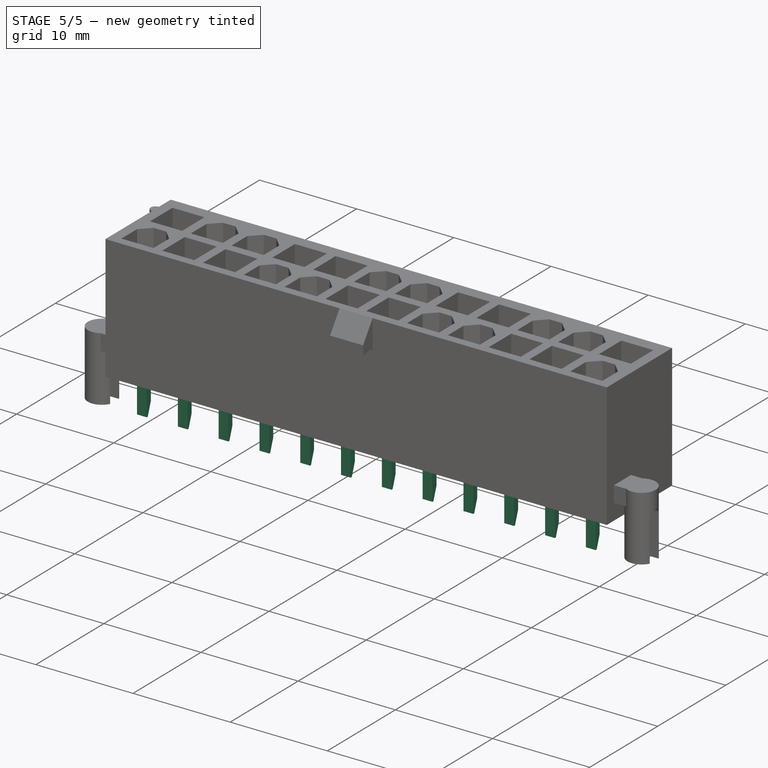
[diagram: stage 5 of 5 — iso view after this stage's code; geometry added in this stage tinted green]
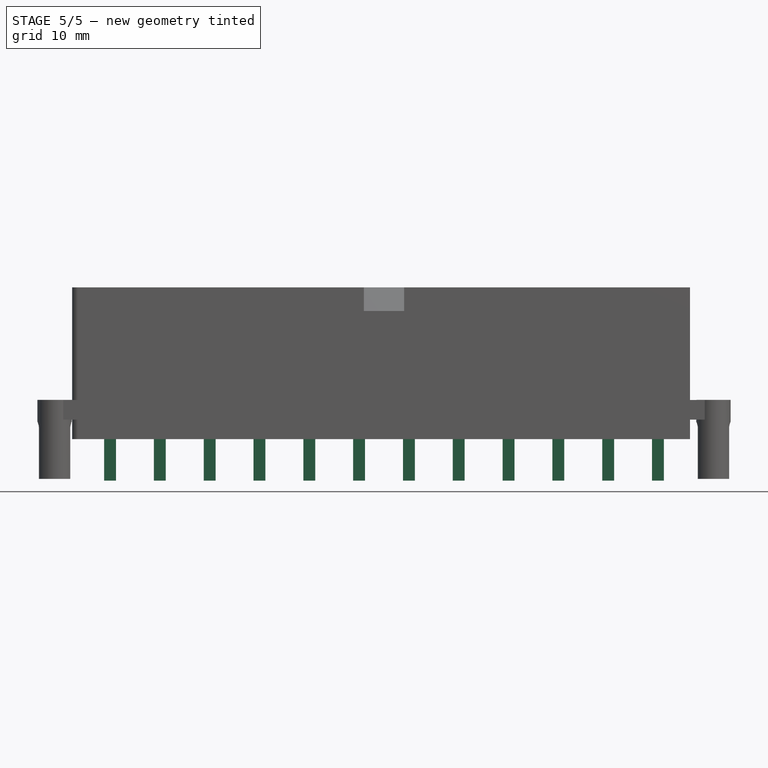
[diagram: stage 5 of 5 — front view after this stage's code; geometry added in this stage tinted green]
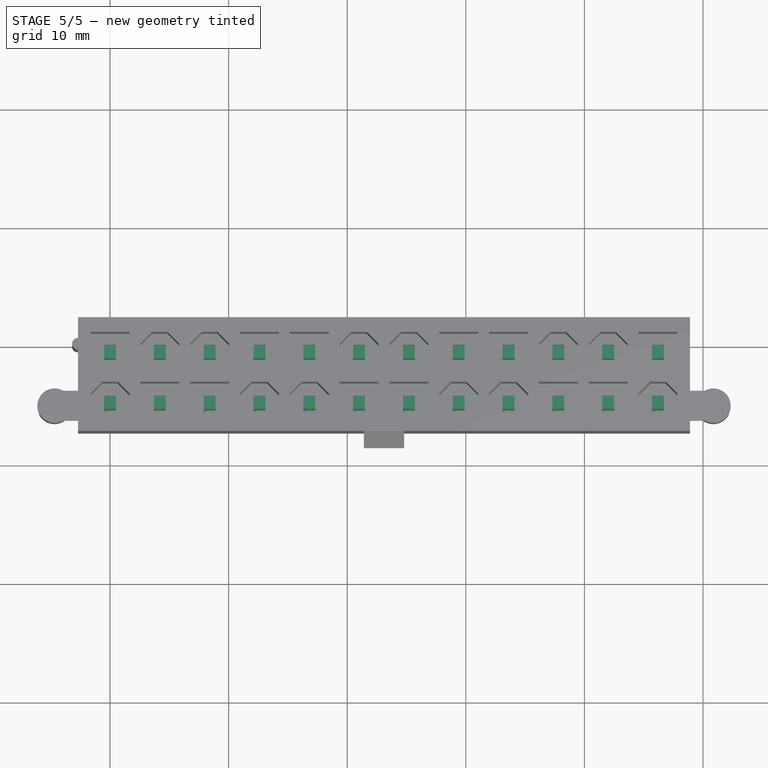
[diagram: stage 5 of 5 — top view after this stage's code; geometry added in this stage tinted green]
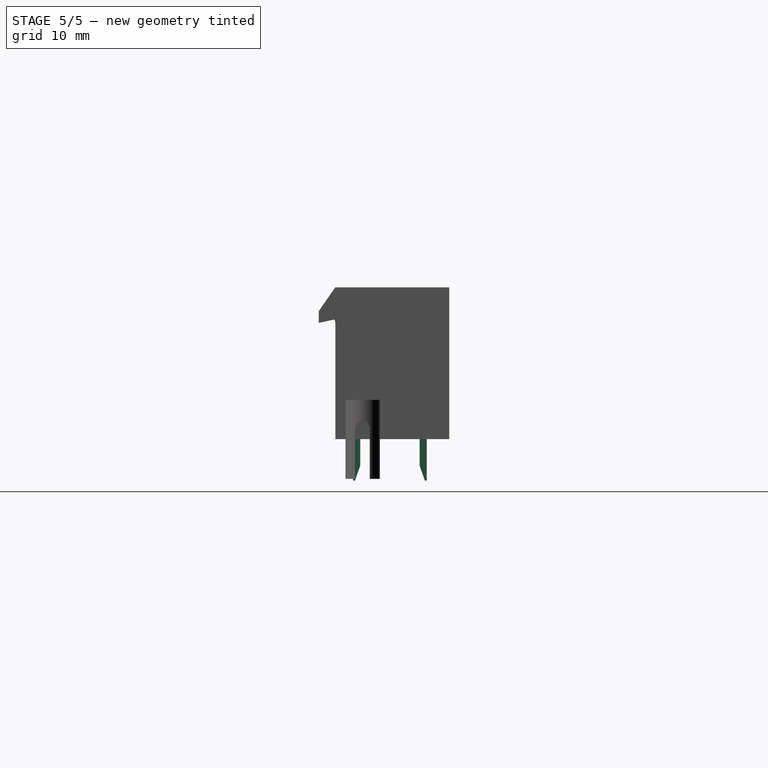
[diagram: stage 5 of 5 — right view after this stage's code; geometry added in this stage tinted green]
FEATURE [Part::Feature] Part__Feature  label="SOLID"
  shape: bbox 58.38 x 16.3 x 11 mm, 694 faces (baked)
FEATURE [App::Part] _39299247  label="ref"
  Group = -> [Part__Feature]
  Origin = -> Origin001
  Placement = pos=(23,9,0) rot=(0,0.707107,0.707107;3.14159rad)
FEATURE [Sketcher::SketchObject] Sketch002  label="pin-sketch"
  FullyConstrained = false
  MapMode = 5
  Placement = pos=(0,0,0) rot=(0.57735,0.57735,0.57735;2.0944rad)
  Support = -> [YZ_Plane002]
  sketch-geometry (9):
    g0: LineSegment StartX=10.3 StartY=9.2 StartZ=0 EndX=11.4428 EndY=9.2 EndZ=0
    g1: LineSegment StartX=11.4428 StartY=9.2 StartZ=0 EndX=11.4428 EndY=4.30054 EndZ=0
    g2: LineSegment StartX=10.3 StartY=4.5 StartZ=0 EndX=10.3 EndY=9.2 EndZ=0
    g3: LineSegment StartX=11.85 StartY=-3.5 StartZ=0 EndX=11.85 EndY=3.6 EndZ=0
    g4: LineSegment StartX=11.25 StartY=2.97051 StartZ=0 EndX=11.25 EndY=-2.22949 EndZ=0
    g5: LineSegment StartX=11.4428 StartY=4.30054 StartZ=0 EndX=11.85 EndY=3.6 EndZ=0
    g6: LineSegment StartX=10.3 StartY=4.5 StartZ=0 EndX=11.25 EndY=2.97051 EndZ=0
    g7: LineSegment StartX=11.85 StartY=-3.5 StartZ=0 EndX=11.7 EndY=-3.5 EndZ=0
    g8: LineSegment StartX=11.7 StartY=-3.5 StartZ=0 EndX=11.25 EndY=-2.22949 EndZ=0
  constraints (15):
    c: Coincident(g0,g1)
    c: Coincident(g2,g0)
    c: Horizontal(g0)
    c: Vertical(g1)
    c: Vertical(g2)
    c: Vertical(g3)
    c: Vertical(g4)
    c: Coincident(g7,g3)
    c: Horizontal(g7)
    c: Coincident(g8,g7)
    c: Coincident(g4,g8)
    c: Coincident(g3,g5)
    c: Coincident(g4,g6)
    c: Coincident(g6,g2)
    c: Coincident(g5,g1)
FEATURE [PartDesign::Pad] Pad  label="base-pin"
  Direction = (1,-2e-16,3e-16)
  Length = 1
  Length2 = 10
  Midplane = true
  Placement = pos=(0,0,0) rot=(0.57735,0.57735,0.57735;2.0944rad)
  Profile = -> Sketch002
  ReferenceAxis = -> Sketch002 [N_Axis]
  Type = 0
FEATURE [PartDesign::Body] Body001  label="pins"
  Group = -> [Sketch002,Pad]
  Origin = -> Origin002
  Placement = pos=(0,-11.5,0) rot=(0,0,1;0rad)
  Tip = -> Pad
FEATURE [Part::FeaturePython] Array  label="Pins-top"  # Draft array (typed FeaturePython)
  AlwaysSyncPlacement = false
  Angle = 360
  ArrayType = 0
  Axis = (0,0,1)
  Base = -> Body001
  Center = (0,0,0)
  Count = 12
  ExpandArray = false
  Fuse = false
  IntervalAxis = (0,0,0)
  IntervalX = (4.2,0,0)
  IntervalY = (0,-5.5,0)
  IntervalZ = (0,0,100)
  NumberCircles = 3
  NumberPolar = 5
  NumberX = 12
  NumberY = 1
  NumberZ = 1
  PlacementList = 12 placements: arithmetic series from (0,-11.5,0) step (4.2,0,0) to (46.2,-11.5,0)
  RadialDistance = 50
  ScaleList = (12) [(1,1,1),(1,1,1),(1,1,1),(1,1,1),(1,1,1),(1,1,1),(1,1,1),(1,1,1),(1,1,1),(1,1,1),(1,1,1),(1,1,1)]
  Symmetry = 1
  TangentialDistance = 25
FEATURE [Sketcher::SketchObject] Sketch003  label="pin-sketch001"
  FullyConstrained = false
  MapMode = 5
  Placement = pos=(0,0,0) rot=(0.57735,0.57735,0.57735;2.0944rad)
  Support = -> [YZ_Plane003]
  sketch-geometry (9):
    g0: LineSegment StartX=10.3 StartY=9.2 StartZ=0 EndX=11.4428 EndY=9.2 EndZ=0
    g1: LineSegment StartX=11.4428 StartY=9.2 StartZ=0 EndX=11.4428 EndY=4.30054 EndZ=0
    g2: LineSegment StartX=10.3 StartY=4.5 StartZ=0 EndX=10.3 EndY=9.2 EndZ=0
    g3: LineSegment StartX=11.85 StartY=-3.5 StartZ=0 EndX=11.85 EndY=3.6 EndZ=0
    g4: LineSegment StartX=11.25 StartY=2.97051 StartZ=0 EndX=11.25 EndY=-2.22949 EndZ=0
    g5: LineSegment StartX=11.4428 StartY=4.30054 StartZ=0 EndX=11.85 EndY=3.6 EndZ=0
    g6: LineSegment StartX=10.3 StartY=4.5 StartZ=0 EndX=11.25 EndY=2.97051 EndZ=0
    g7: LineSegment StartX=11.85 StartY=-3.5 StartZ=0 EndX=11.7 EndY=-3.5 EndZ=0
    g8: LineSegment StartX=11.7 StartY=-3.5 StartZ=0 EndX=11.25 EndY=-2.22949 EndZ=0
  constraints (15):
    c: Coincident(g0,g1)
    c: Coincident(g2,g0)
    c: Horizontal(g0)
    c: Vertical(g1)
    c: Vertical(g2)
    c: Vertical(g3)
    c: Vertical(g4)
    c: Coincident(g7,g3)
    c: Horizontal(g7)
    c: Coincident(g8,g7)
    c: Coincident(g4,g8)
    c: Coincident(g3,g5)
    c: Coincident(g4,g6)
    c: Coincident(g6,g2)
    c: Coincident(g5,g1)
FEATURE [PartDesign::Pad] Pad001  label="base-pin001"
  Direction = (1,-2e-16,3e-16)
  Length = 1
  Length2 = 10
  Midplane = true
  Placement = pos=(0,0,0) rot=(0.57735,0.57735,0.57735;2.0944rad)
  Profile = -> Sketch003
  ReferenceAxis = -> Sketch003 [N_Axis]
  Type = 0
FEATURE [PartDesign::Body] Body002  label="pins001"
  Group = -> [Sketch003,Pad001]
  Origin = -> Origin003
  Placement = pos=(0,-11.5,0) rot=(0,0,1;0rad)
  Tip = -> Pad001
FEATURE [Part::FeaturePython] Array001  label="Pins-bot"  # Draft array (typed FeaturePython)
  AlwaysSyncPlacement = false
  Angle = 360
  ArrayType = 0
  Axis = (0,0,1)
  Base = -> Body002
  Center = (0,0,0)
  Count = 12
  ExpandArray = false
  Fuse = false
  IntervalAxis = (0,0,0)
  IntervalX = (4.2,0,0)
  IntervalY = (0,-5.5,0)
  IntervalZ = (0,0,100)
  NumberCircles = 3
  NumberPolar = 5
  NumberX = 12
  NumberY = 1
  NumberZ = 1
  Placement = pos=(46.2,-5.5,0) rot=(0,0,1;3.14159rad)
  PlacementList = 12 placements: arithmetic series from (0,-11.5,0) step (4.2,0,0) to (46.2,-11.5,0)
  RadialDistance = 50
  ScaleList = (12) [(1,1,1),(1,1,1),(1,1,1),(1,1,1),(1,1,1),(1,1,1),(1,1,1),(1,1,1),(1,1,1),(1,1,1),(1,1,1),(1,1,1)]
  Symmetry = 1
  TangentialDistance = 25
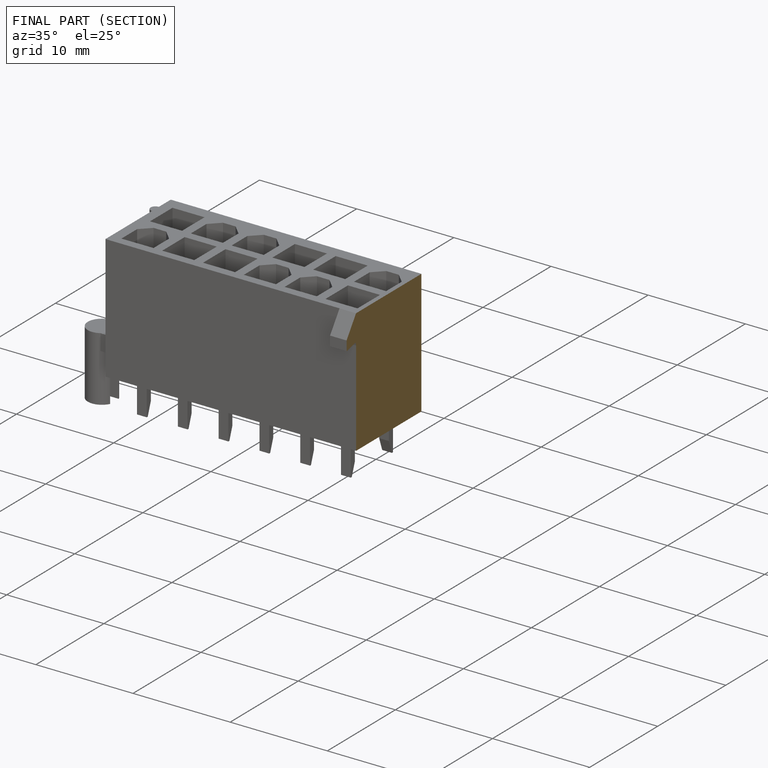
[diagram: finished part — half-section view (interior)]
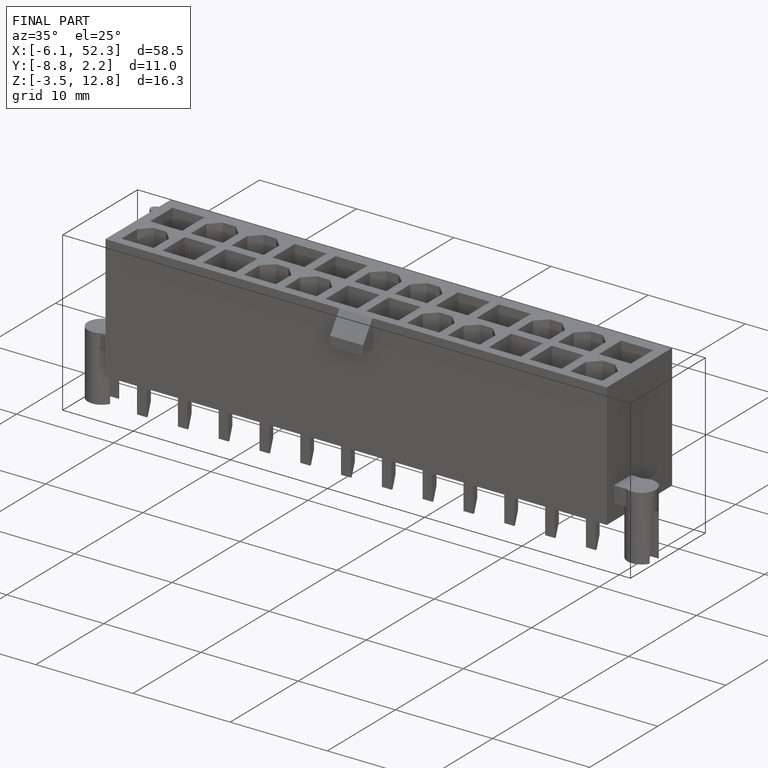
[diagram: finished part — iso view with bounding-box wireframe]
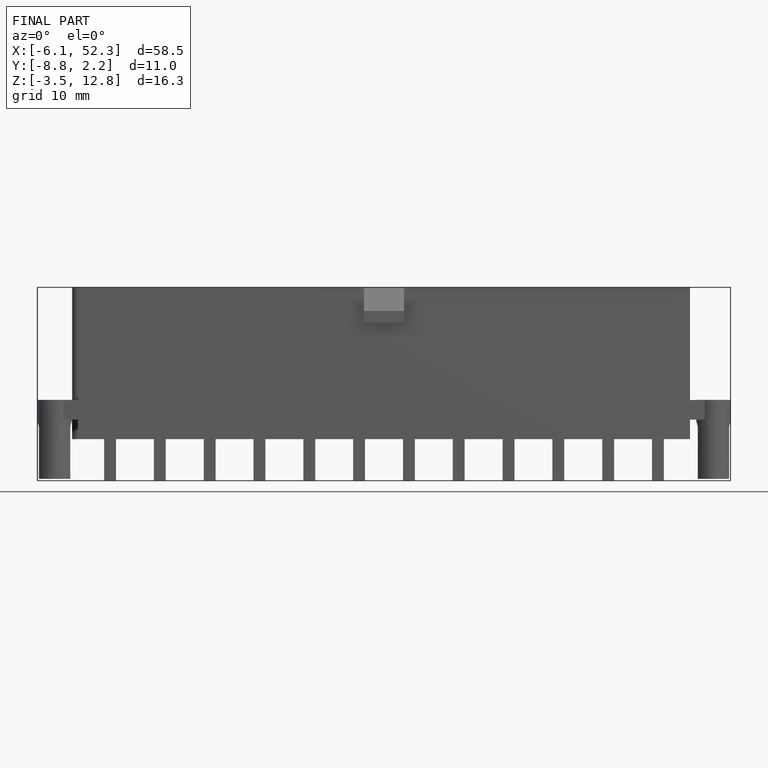
[diagram: finished part — front view with bounding-box wireframe]
